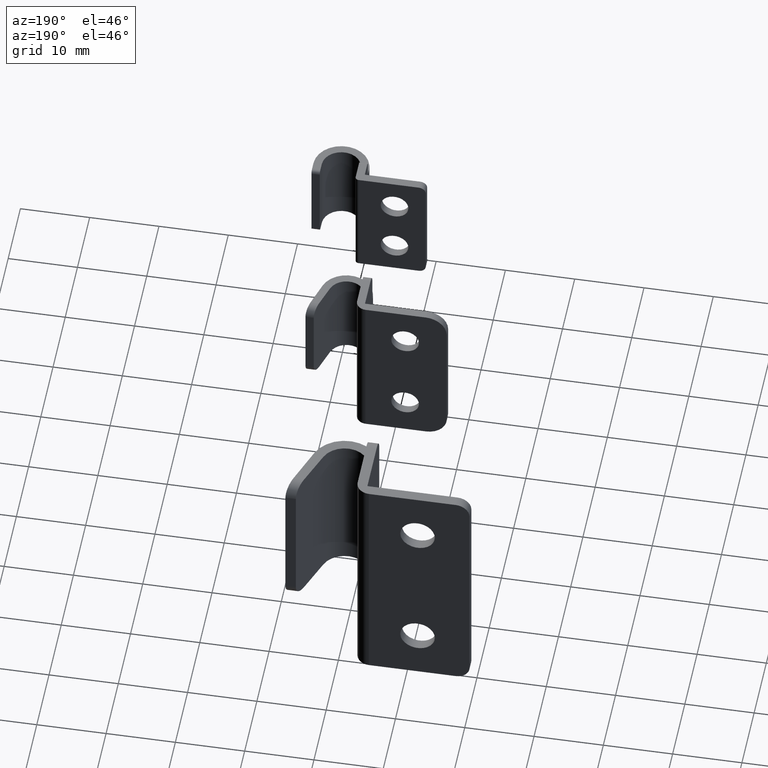
[diagram: clean part render]
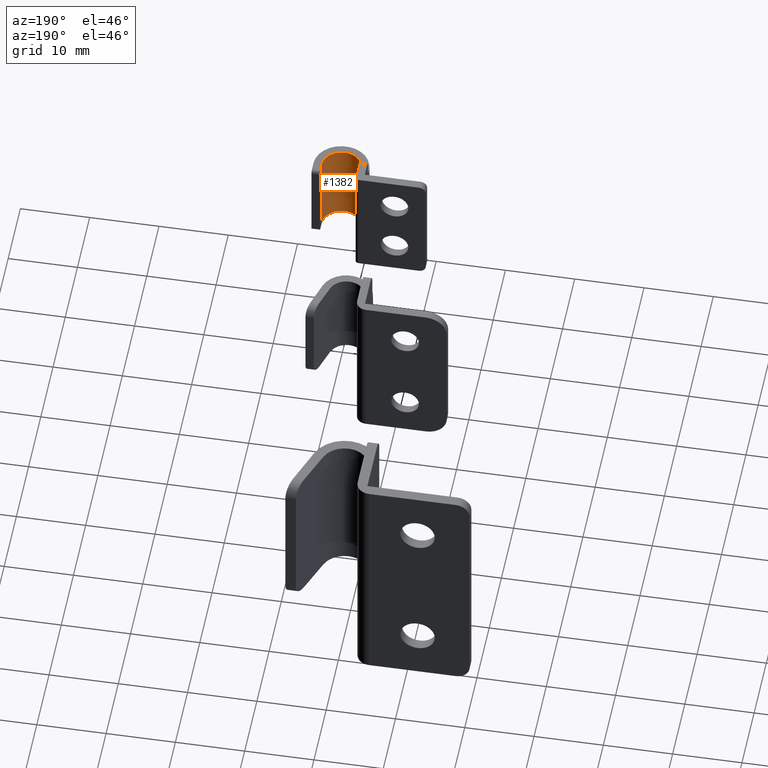
[diagram: same view with one face highlighted and labeled with its STEP entity id]
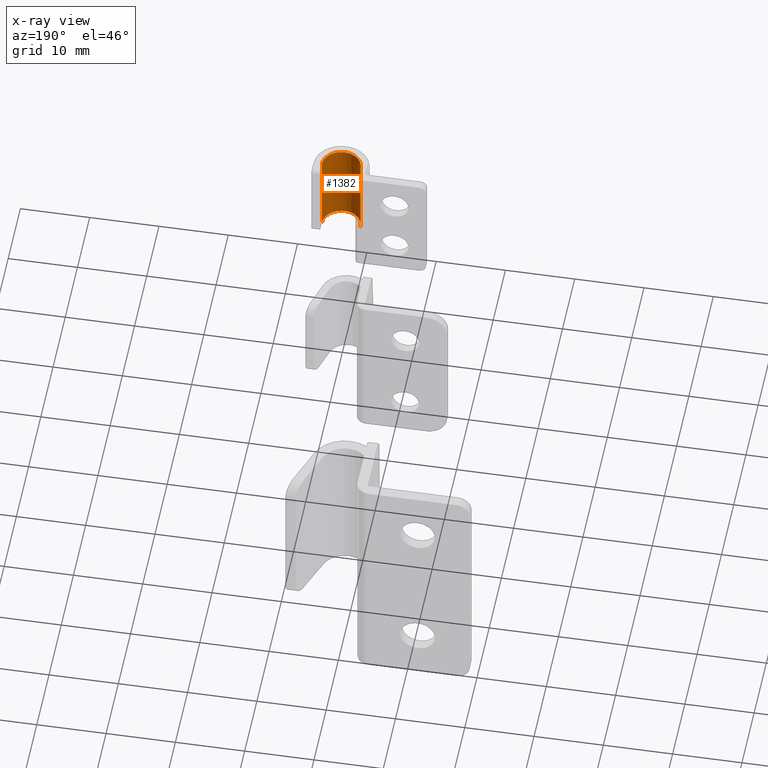
[diagram: x-ray of the same camera — body ghosted, the highlighted face saturated]
A machine part, auxiliary view. The second image highlights one B-rep face of the part: STEP entity #1382.
The next image is the same camera in x-ray: the body ghosted, the highlighted face saturated — about 0% of this face is hidden behind the body in this view.
In plain terms, the highlighted cylindrical surface (edge-blend (fillet) strip) has radius 2.8 mm, axis along (-0, 0, -1).
Its self-contained STEP definition (entity closure, byte-faithful):
#120=FACE_OUTER_BOUND('',#195,.T.);
#195=EDGE_LOOP('',(#1005,#1006,#1007,#1008));
#286=LINE('',#2054,#417);
#295=LINE('',#2079,#426);
#417=VECTOR('',#1620,12.);
#426=VECTOR('',#1641,12.);
#545=CIRCLE('',#1464,2.8);
#550=CIRCLE('',#1474,2.8);
#607=VERTEX_POINT('',#2051);
#608=VERTEX_POINT('',#2053);
#617=VERTEX_POINT('',#2076);
#618=VERTEX_POINT('',#2078);
#747=EDGE_CURVE('',#607,#608,#286,.T.);
#759=EDGE_CURVE('',#618,#617,#295,.T.);
#764=EDGE_CURVE('',#607,#618,#545,.T.);
#780=EDGE_CURVE('',#617,#608,#550,.T.);
#1005=ORIENTED_EDGE('',*,*,#780,.T.);
#1006=ORIENTED_EDGE('',*,*,#747,.F.);
#1007=ORIENTED_EDGE('',*,*,#764,.T.);
#1008=ORIENTED_EDGE('',*,*,#759,.T.);
#1341=CYLINDRICAL_SURFACE('',#1475,2.8);
#1382=ADVANCED_FACE('',(#120),#1341,.F.);
#1464=AXIS2_PLACEMENT_3D('',#2088,#1652,#1653);
#1474=AXIS2_PLACEMENT_3D('',#2118,#1683,#1684);
#1475=AXIS2_PLACEMENT_3D('',#2119,#1685,#1686);
#1620=DIRECTION('',(-1.30614473485313E-16,0.,-1.));
#1641=DIRECTION('',(-1.30614473485313E-16,0.,-1.));
#1652=DIRECTION('center_axis',(1.30614473485313E-16,0.,1.));
#1653=DIRECTION('ref_axis',(1.,-1.07888653919042E-11,-1.30614473485313E-16));
#1683=DIRECTION('center_axis',(-1.30614473485313E-16,0.,-1.));
#1684=DIRECTION('ref_axis',(1.,-1.07888653919042E-11,-1.30614473485313E-16));
#1685=DIRECTION('center_axis',(-1.30614473485313E-16,0.,-1.));
#1686=DIRECTION('ref_axis',(1.,-1.07888653919042E-11,-1.30614473485313E-16));
#2051=CARTESIAN_POINT('',(-6.8,4.00000000003021,14.5));
#2053=CARTESIAN_POINT('',(-6.8,4.00000000003021,2.5));
#2054=CARTESIAN_POINT('',(-6.8,4.00000000003021,17.));
#2076=CARTESIAN_POINT('',(-1.2,4.00000000003021,2.5));
#2078=CARTESIAN_POINT('',(-1.19999999999999,4.00000000003021,14.5));
#2079=CARTESIAN_POINT('',(-1.19999999999999,4.00000000003021,17.));
#2088=CARTESIAN_POINT('Origin',(-4.,4.,14.5));
#2118=CARTESIAN_POINT('Origin',(-4.,4.,2.5));
#2119=CARTESIAN_POINT('Origin',(-3.99999999999999,4.,17.));